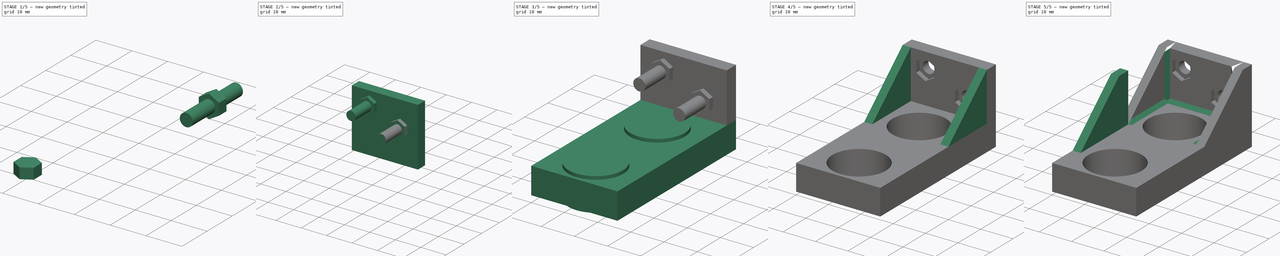
[diagram: build sequence overview — one tinted view per stage of 5, left to right]
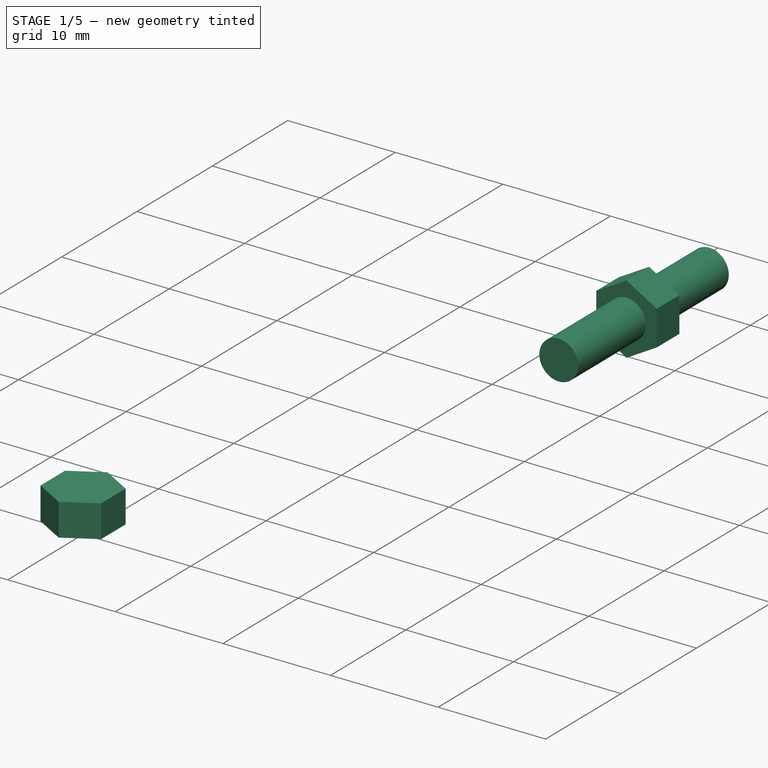
[diagram: stage 1 of 5 — iso view after this stage's code; geometry added in this stage tinted green]
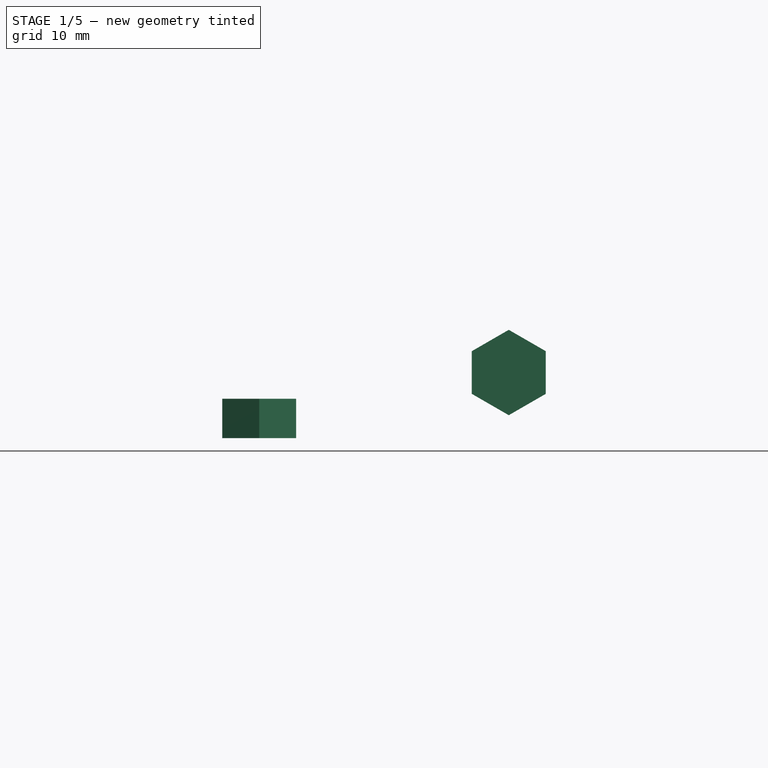
[diagram: stage 1 of 5 — front view after this stage's code; geometry added in this stage tinted green]
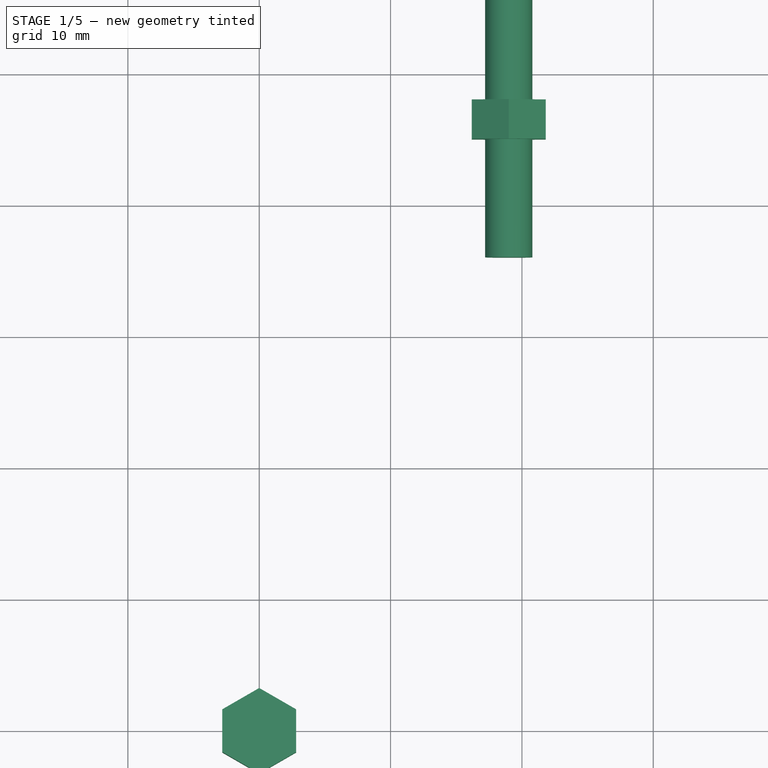
[diagram: stage 1 of 5 — top view after this stage's code; geometry added in this stage tinted green]
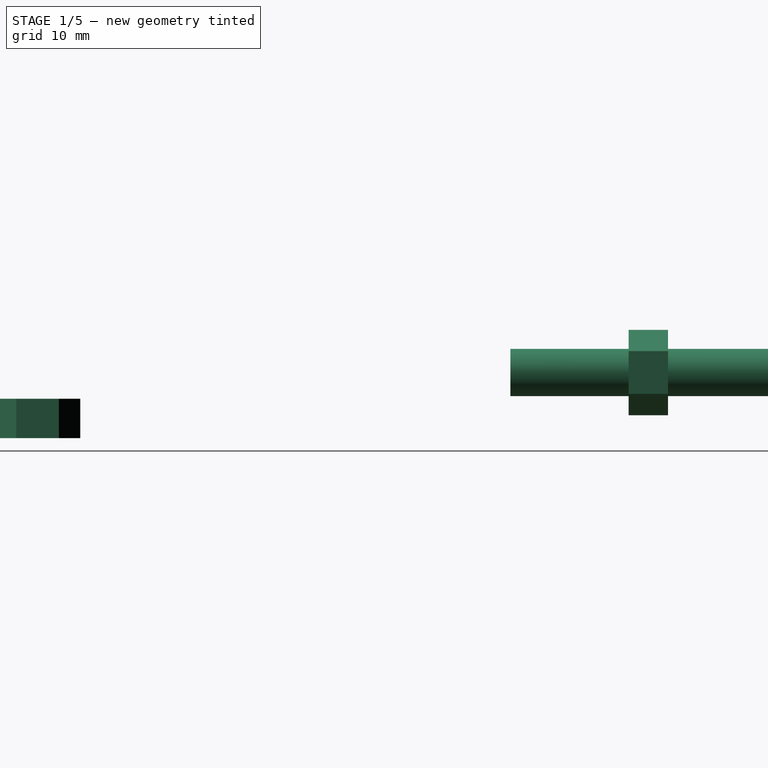
[diagram: stage 1 of 5 — right view after this stage's code; geometry added in this stage tinted green]
FCSTD DOCUMENT  (FreeCAD 0.19R14555 (Git shallow))
Label: Soporte ultrasonidos
License: All rights reserved
LicenseURL: http://en.wikipedia.org/wiki/All_rights_reserved
objects: Part::MultiFuse×6, Part::Cylinder×4, Part::Chamfer×3, Part::Box×2, Part::Cut×2, Part::Feature×2, Part::Prism×2, Sketcher::SketchObject×1, PartDesign::Pad×1, PartDesign::Body×1
note: 25 computed .brp shape members not serialized (recipe doc carries the construction recipe); baked Part::Feature solids carry a one-line shape summary decoded from their .brp

FEATURE [Part::Prism] Prism007  label="Prisma007"
  AttacherType = Attacher::AttachEngine3D
  Circumradius = 3.25
  FirstAngle = 0
  Height = 3
  Placement = pos=(0,0,8) rot=(0,0,1;1.5708rad)
  Polygon = 6
  SecondAngle = 0
FEATURE [Part::Prism] Prism008  label="Prisma008"
  AttacherType = Attacher::AttachEngine3D
  Circumradius = 3.25
  FirstAngle = 0
  Height = 3
  Placement = pos=(0,0,8) rot=(0,0,1;1.5708rad)
  Polygon = 6
  SecondAngle = 0
FEATURE [Part::Cylinder] Cylinder003  label="Cilindro003"
  Angle = 360
  AttacherType = Attacher::AttachEngine3D
  Height = 20
  Radius = 1.8
FEATURE [Part::MultiFuse] Fusion004
  Placement = pos=(19,56,13) rot=(1,0,0;1.5708rad)
  Shapes = -> [Cylinder003,Prism008]
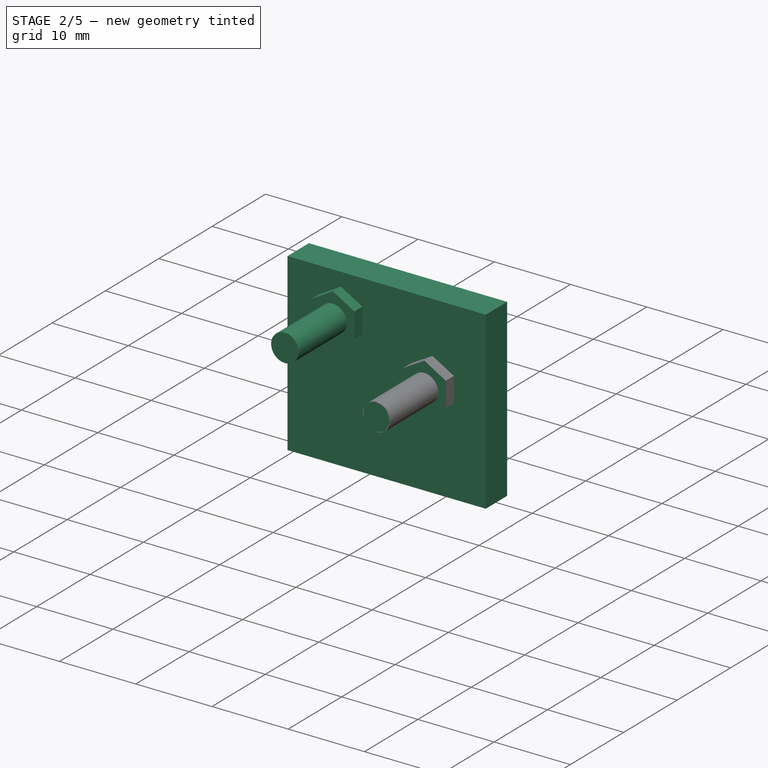
[diagram: stage 2 of 5 — iso view after this stage's code; geometry added in this stage tinted green]
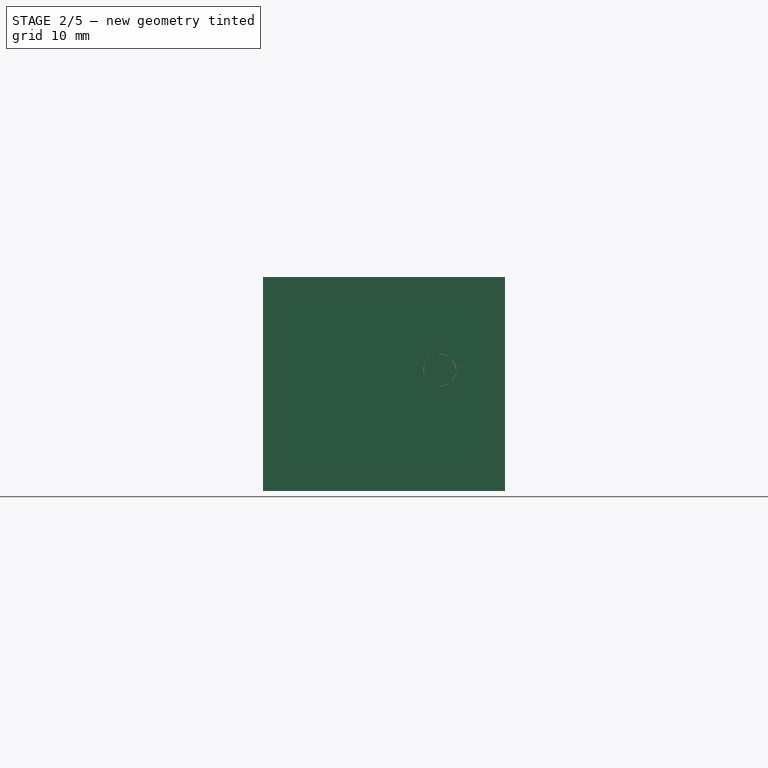
[diagram: stage 2 of 5 — front view after this stage's code; geometry added in this stage tinted green]
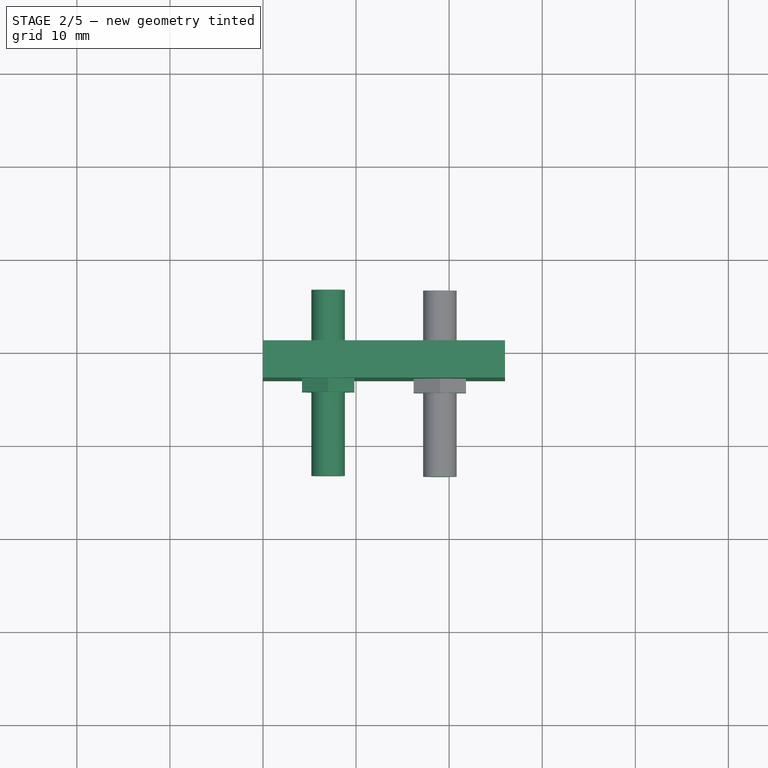
[diagram: stage 2 of 5 — top view after this stage's code; geometry added in this stage tinted green]
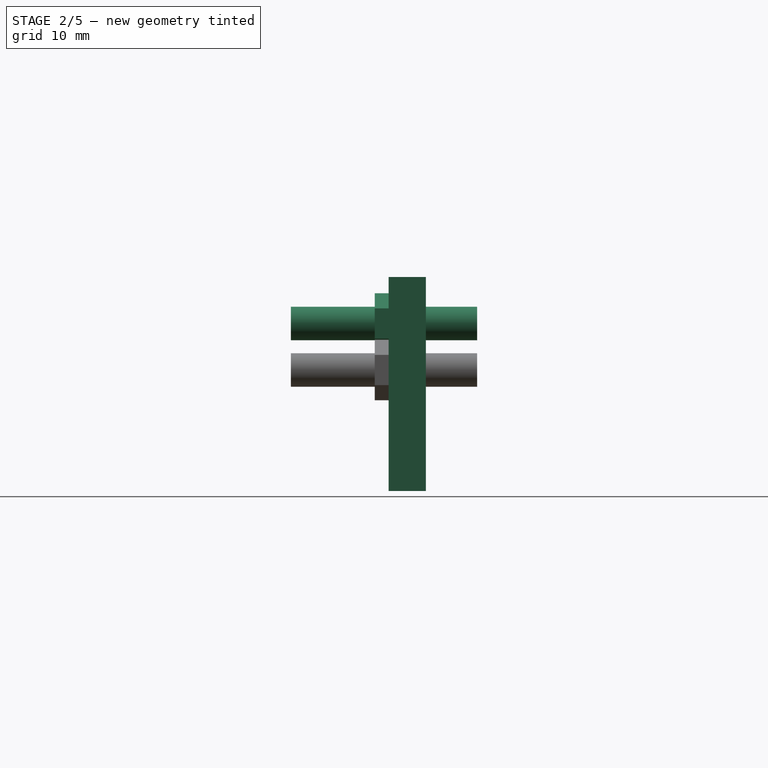
[diagram: stage 2 of 5 — right view after this stage's code; geometry added in this stage tinted green]
FEATURE [Part::Box] Box001  label="Cubo001"
  AttacherType = Attacher::AttachEngine3D
  Height = 23
  Length = 26
  Placement = pos=(0,47,0) rot=(0,0,1;0rad)
  Width = 4
FEATURE [Part::Cylinder] Cylinder002  label="Cilindro002"
  Angle = 360
  AttacherType = Attacher::AttachEngine3D
  Height = 20
  Radius = 1.8
FEATURE [Part::MultiFuse] Fusion003
  Placement = pos=(7,56,18) rot=(1,0,0;1.5708rad)
  Shapes = -> [Cylinder002,Prism007]
FEATURE [Part::MultiFuse] Fusion005
  Placement = pos=(0,0.5,0) rot=(0,0,1;0rad)
  Shapes = -> [Fusion004,Fusion003]
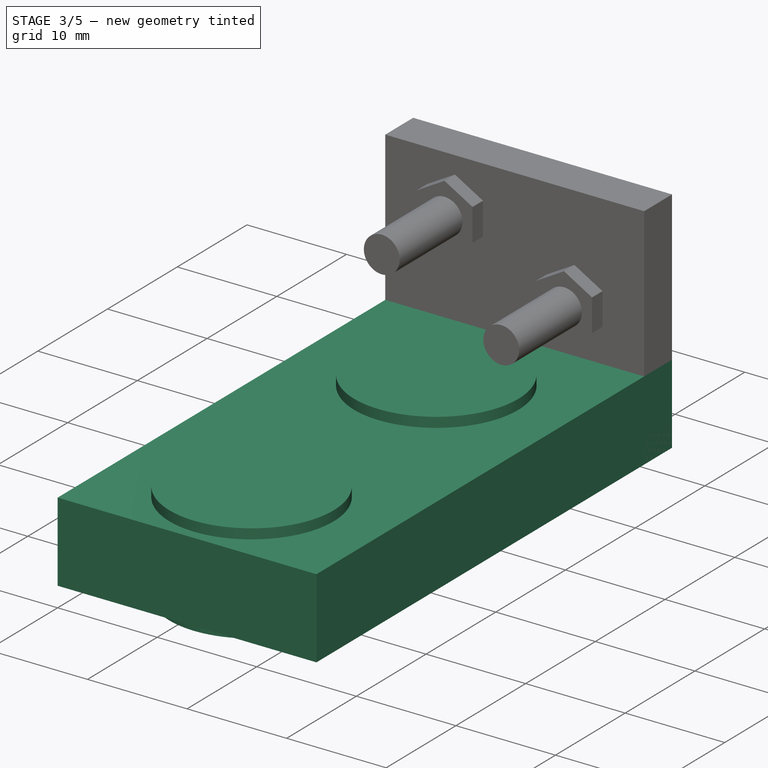
[diagram: stage 3 of 5 — iso view after this stage's code; geometry added in this stage tinted green]
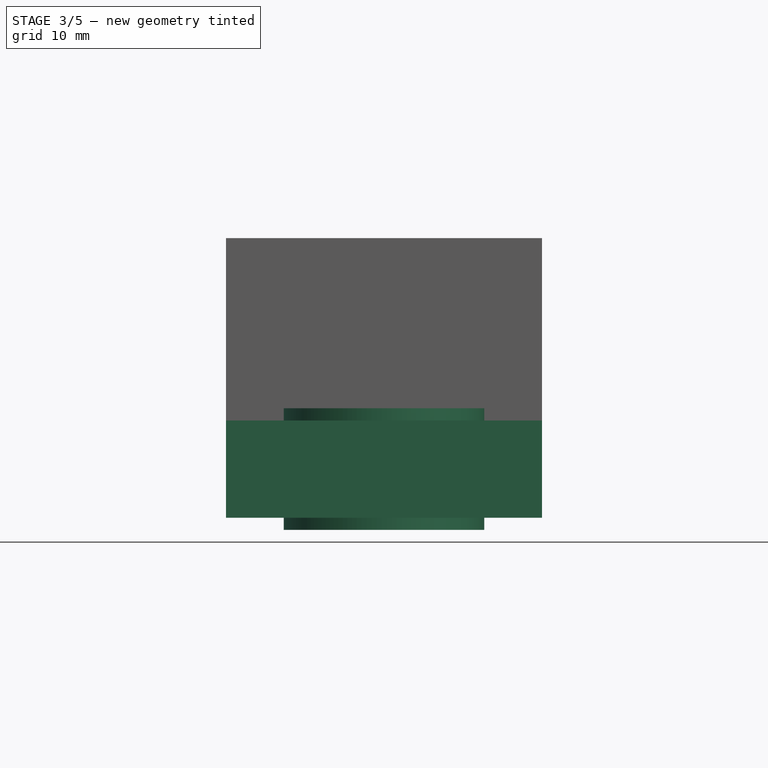
[diagram: stage 3 of 5 — front view after this stage's code; geometry added in this stage tinted green]
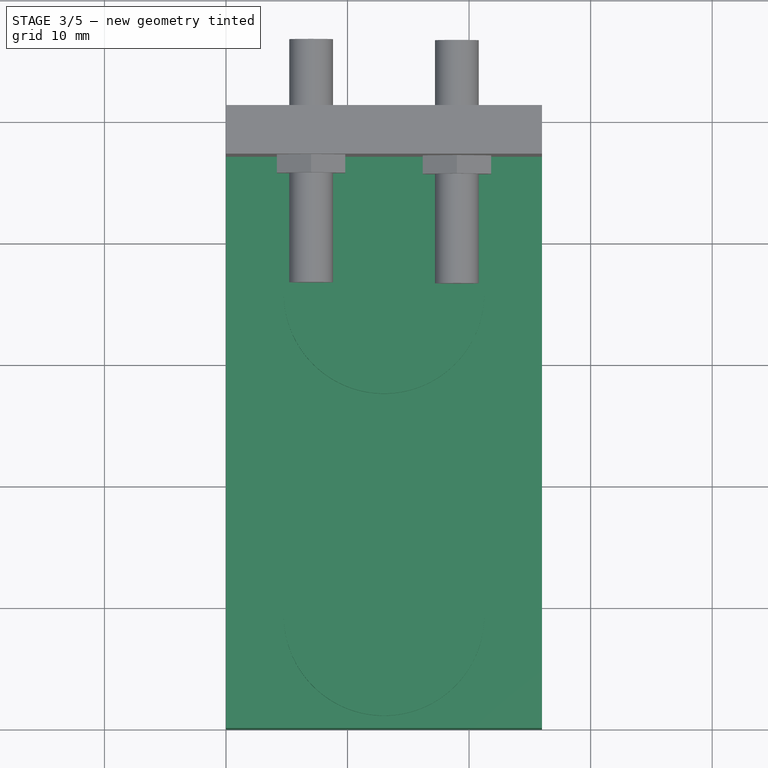
[diagram: stage 3 of 5 — top view after this stage's code; geometry added in this stage tinted green]
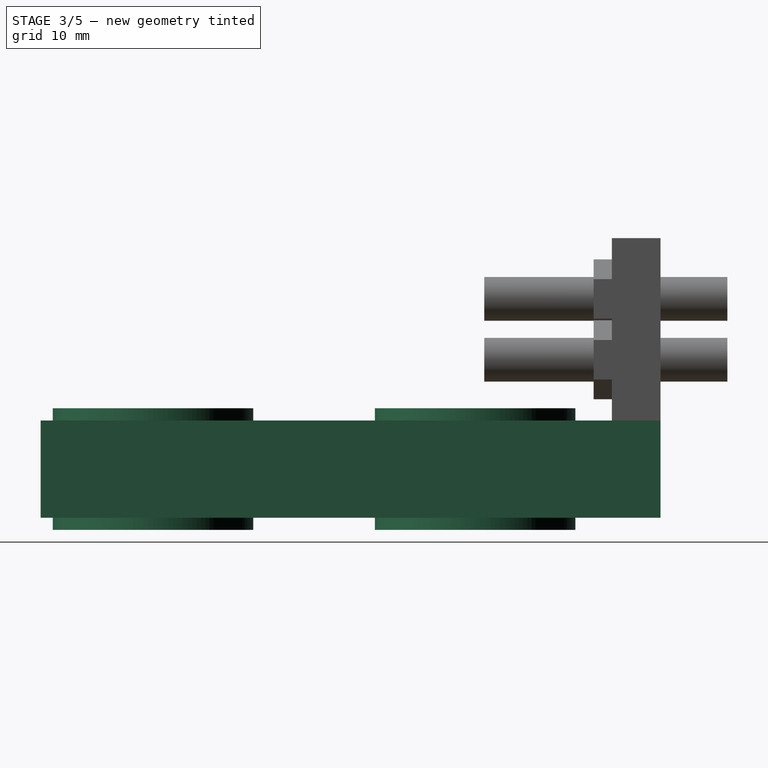
[diagram: stage 3 of 5 — right view after this stage's code; geometry added in this stage tinted green]
FEATURE [Part::Box] Box  label="Cubo"
  AttacherType = Attacher::AttachEngine3D
  Height = 8
  Length = 26
  Width = 51
FEATURE [Part::Cylinder] Cylinder  label="Cilindro"
  Angle = 360
  AttacherType = Attacher::AttachEngine3D
  Height = 10
  Placement = pos=(10,10,0) rot=(0,0,1;0rad)
  Radius = 8.25
FEATURE [Part::Cylinder] Cylinder001  label="Cilindro001"
  Angle = 360
  AttacherType = Attacher::AttachEngine3D
  Height = 10
  Placement = pos=(10,36.5,0) rot=(0,0,1;0rad)
  Radius = 8.25
FEATURE [Part::MultiFuse] Fusion
  Placement = pos=(3,-0.75,-1) rot=(0,0,1;0rad)
  Shapes = -> [Cylinder,Cylinder001]
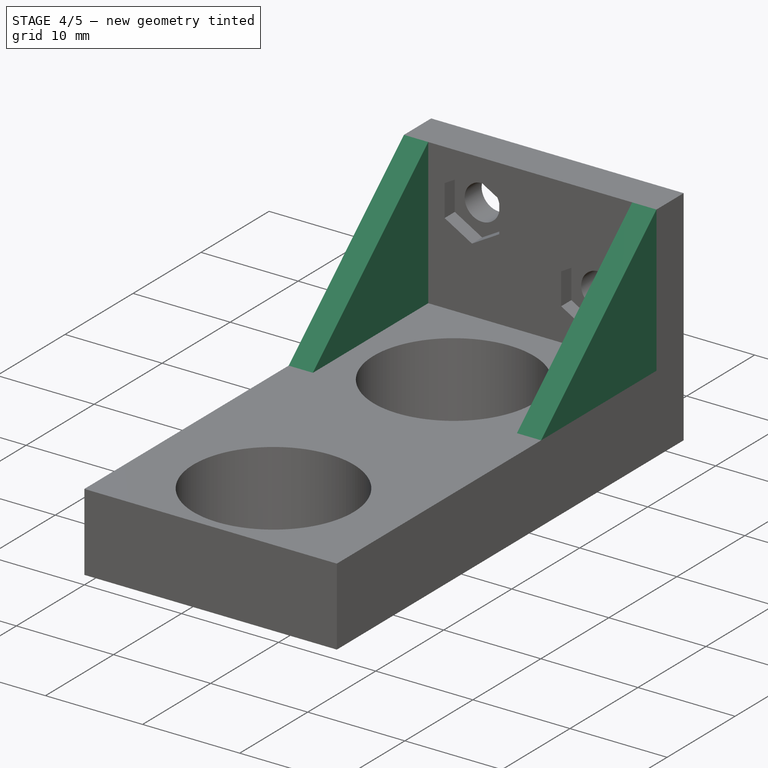
[diagram: stage 4 of 5 — iso view after this stage's code; geometry added in this stage tinted green]
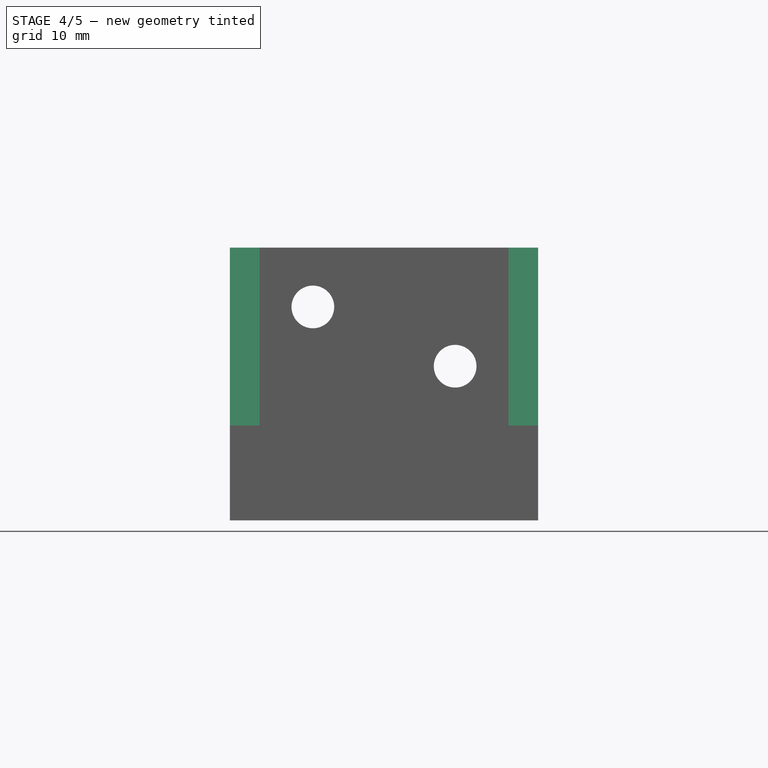
[diagram: stage 4 of 5 — front view after this stage's code; geometry added in this stage tinted green]
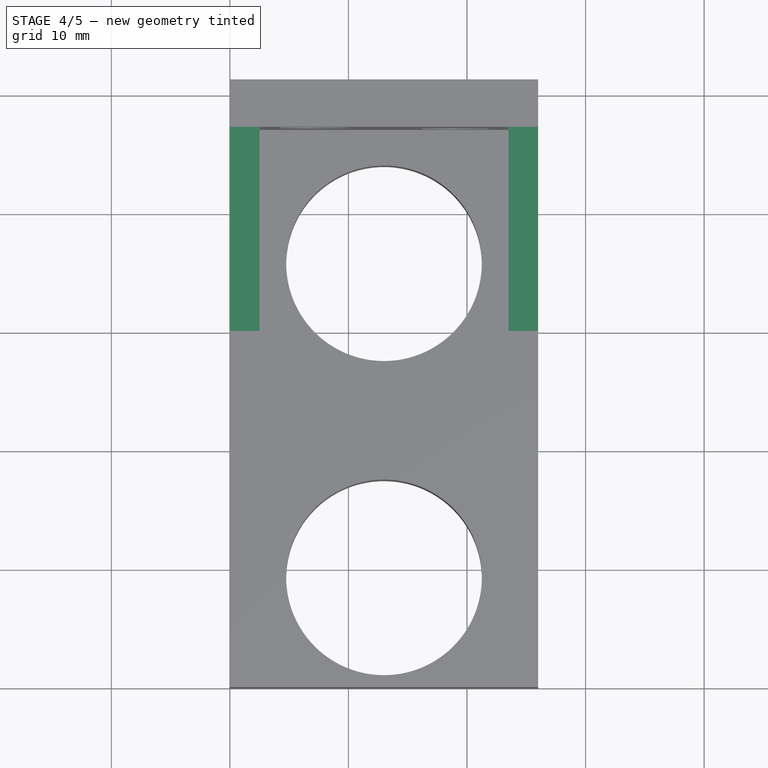
[diagram: stage 4 of 5 — top view after this stage's code; geometry added in this stage tinted green]
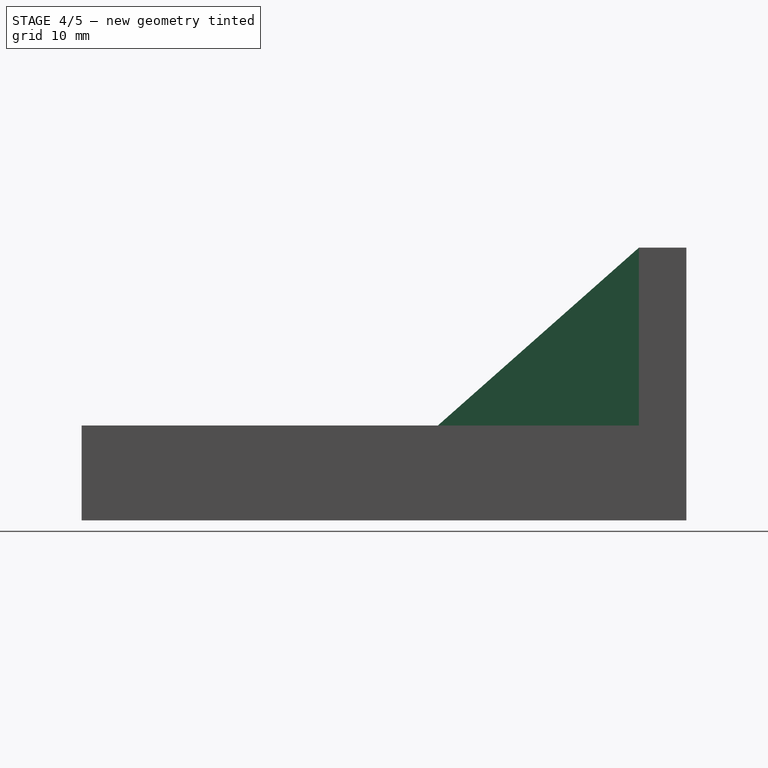
[diagram: stage 4 of 5 — right view after this stage's code; geometry added in this stage tinted green]
FEATURE [Part::Cut] Cut
  Base = -> Box
  Tool = -> Fusion
FEATURE [Part::MultiFuse] Fusion001
  Shapes = -> [Cut,Box001]
FEATURE [PartDesign::Body] Body
  Group = -> [Sketch,Pad]
  Origin = -> Origin
  Tip = -> Pad
FEATURE [Part::Feature] Pad001
  Placement = pos=(0,21,0) rot=(0.57735,0.57735,0.57735;2.0944rad)
  shape: bbox 2.5 x 30 x 23 mm, 6 faces (baked)
FEATURE [Part::Feature] Pad002
  Placement = pos=(23.5,21,0) rot=(0.57735,0.57735,0.57735;2.0944rad)
  shape: bbox 2.5 x 30 x 23 mm, 6 faces (baked)
FEATURE [Part::MultiFuse] Fusion002
  Shapes = -> [Pad001,Pad002,Fusion001]
FEATURE [Part::Cut] Cut001
  Base = -> Fusion002
  Tool = -> Fusion005
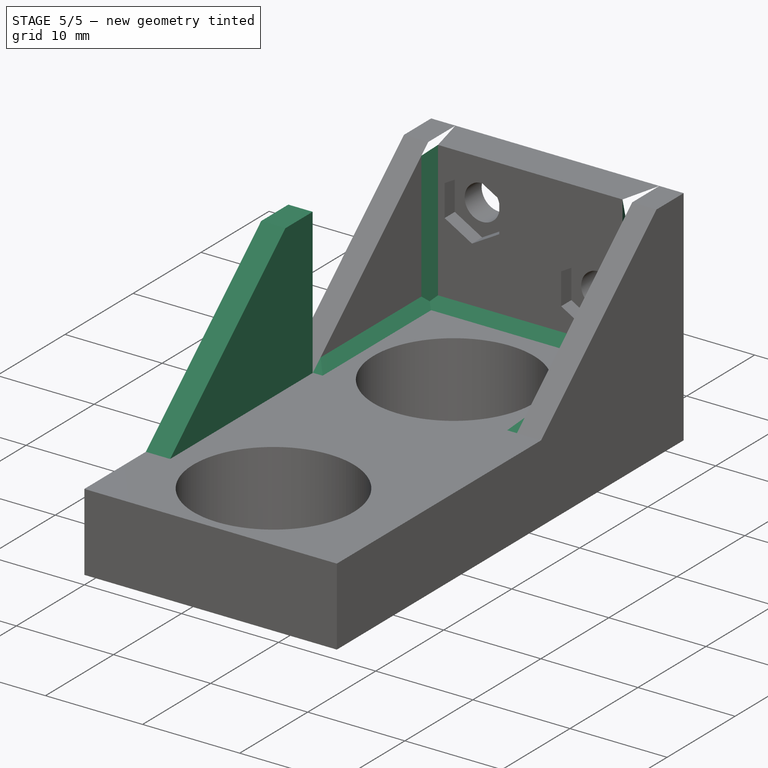
[diagram: stage 5 of 5 — iso view after this stage's code; geometry added in this stage tinted green]
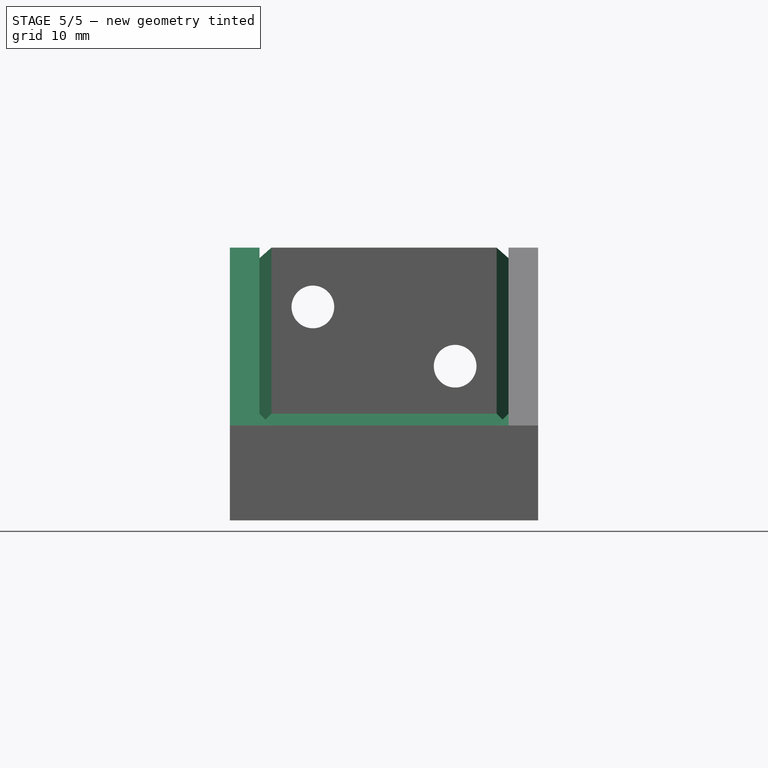
[diagram: stage 5 of 5 — front view after this stage's code; geometry added in this stage tinted green]
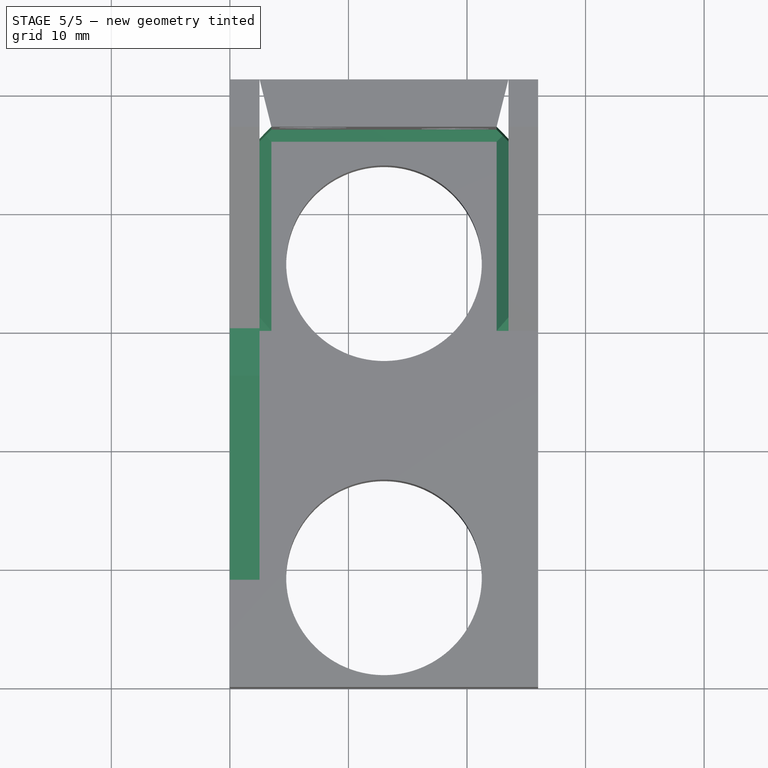
[diagram: stage 5 of 5 — top view after this stage's code; geometry added in this stage tinted green]
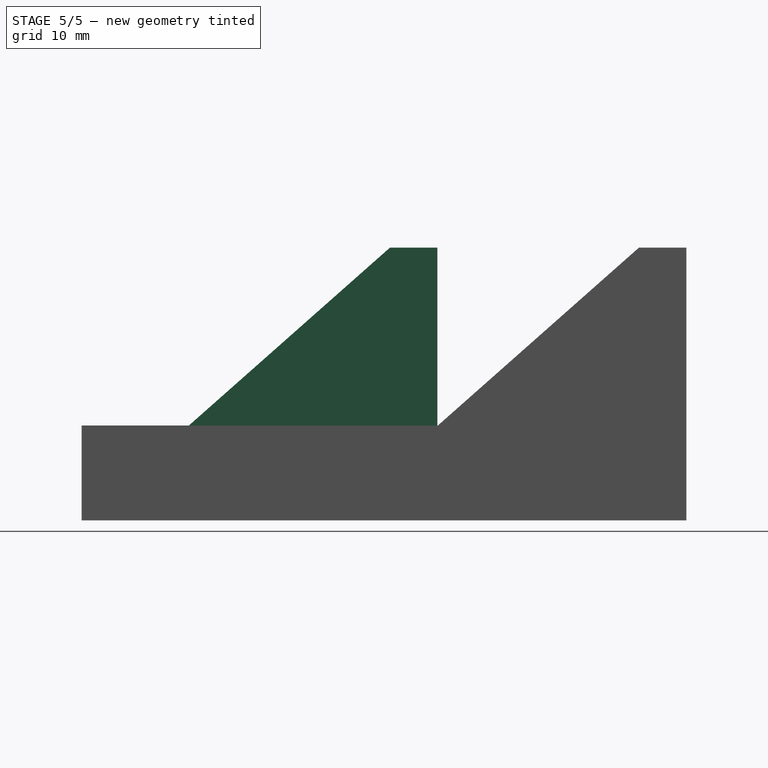
[diagram: stage 5 of 5 — right view after this stage's code; geometry added in this stage tinted green]
FEATURE [Sketcher::SketchObject] Sketch
  FullyConstrained = true
  MapMode = 5
  Placement = pos=(0,0,0) rot=(0.57735,0.57735,0.57735;2.0944rad)
  Support = -> [YZ_Plane]
  sketch-geometry (4):
    g0: LineSegment StartX=30 StartY=23 StartZ=0 EndX=30 EndY=0 EndZ=0
    g1: LineSegment StartX=30 StartY=0 StartZ=0 EndX=0 EndY=0 EndZ=0
    g2: LineSegment StartX=30 StartY=23 StartZ=0 EndX=26 EndY=23 EndZ=0
    g3: LineSegment StartX=26 StartY=23 StartZ=0 EndX=0 EndY=0 EndZ=0
  constraints (11):
    c: Coincident(g2,g3)
    c: Coincident(g2,g0)
    c: Horizontal(g2)
    c: Vertical(g0)
    c: Horizontal(g1)
    c: Coincident(g0,g1)
    c: Coincident(g1,g3)
    c: DistanceY(g0,g0) = 23
    c: DistanceX(g2,g2) = 4
    c: DistanceX(g1,g1) = 30
    c: Coincident(g1,g-1)
FEATURE [PartDesign::Pad] Pad
  Direction = (1,1,1)
  Length = 2.5
  Length2 = 100
  Placement = pos=(0,0,0) rot=(0.57735,0.57735,0.57735;2.0944rad)
  Profile = -> Sketch
  Type = 0
FEATURE [Part::Chamfer] Chamfer
  Base = -> Cut001
  Edges = 2 edges r=1: [Edge49,Edge51]
FEATURE [Part::Chamfer] Chamfer001
  Base = -> Chamfer
  Edges = 2 edges r=1: [Edge25,Edge30]
FEATURE [Part::Chamfer] Chamfer002
  Base = -> Chamfer001
  Edges = 1 edges r=1: [Edge20]
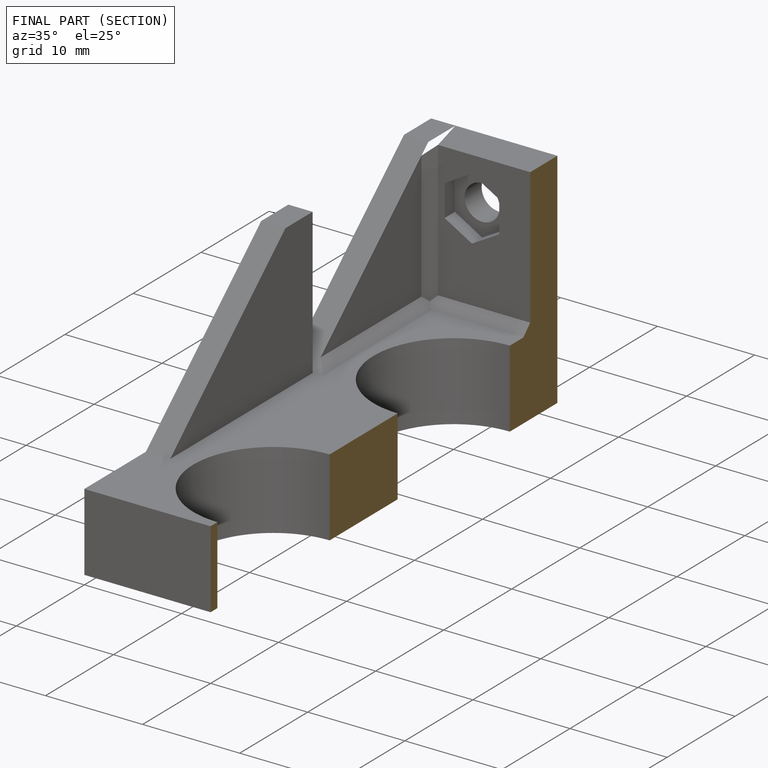
[diagram: finished part — half-section view (interior)]
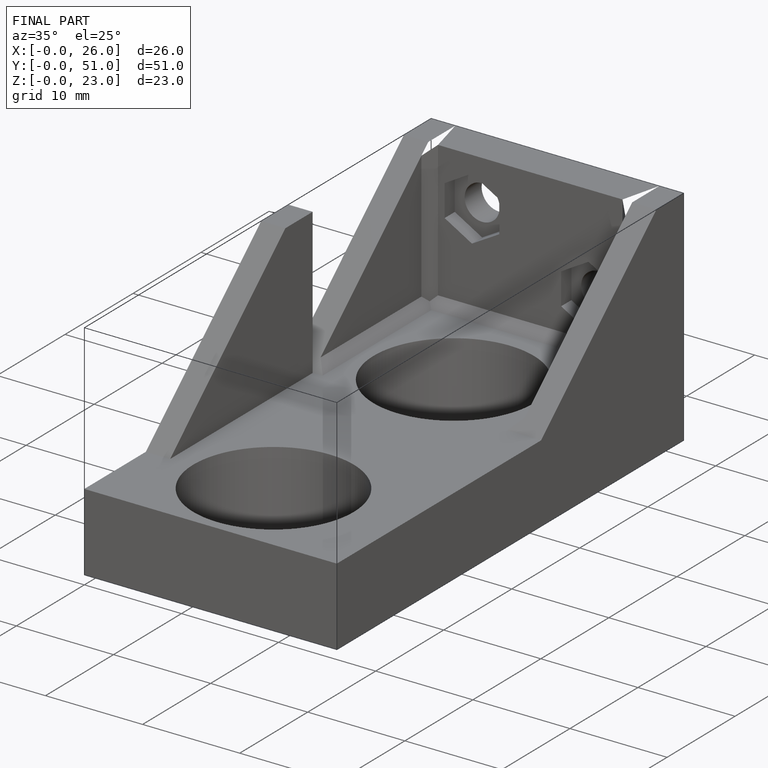
[diagram: finished part — iso view with bounding-box wireframe]
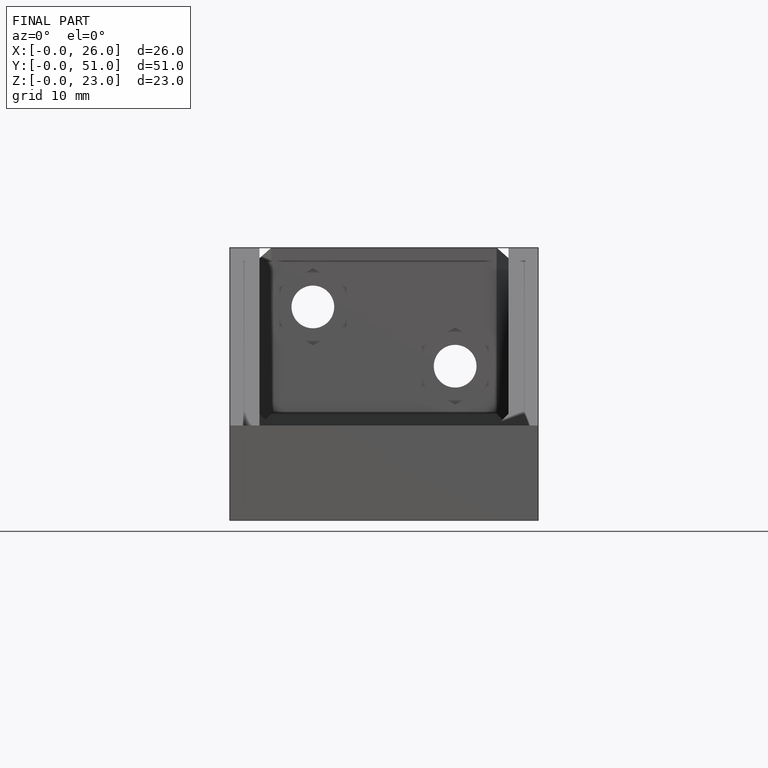
[diagram: finished part — front view with bounding-box wireframe]
